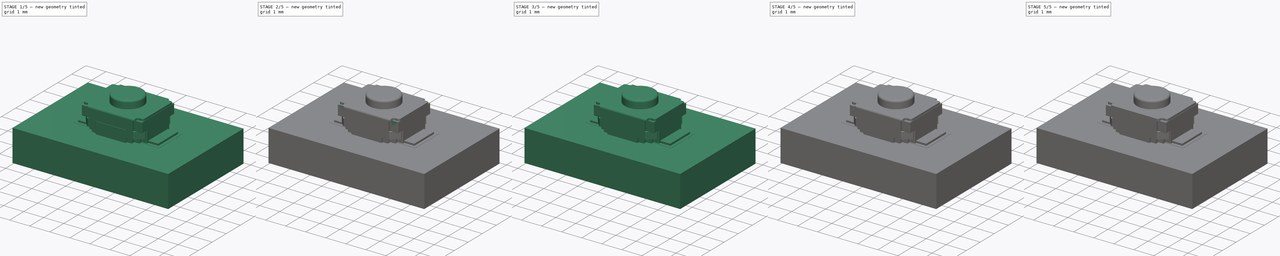
[diagram: build sequence overview — one tinted view per stage of 5, left to right]
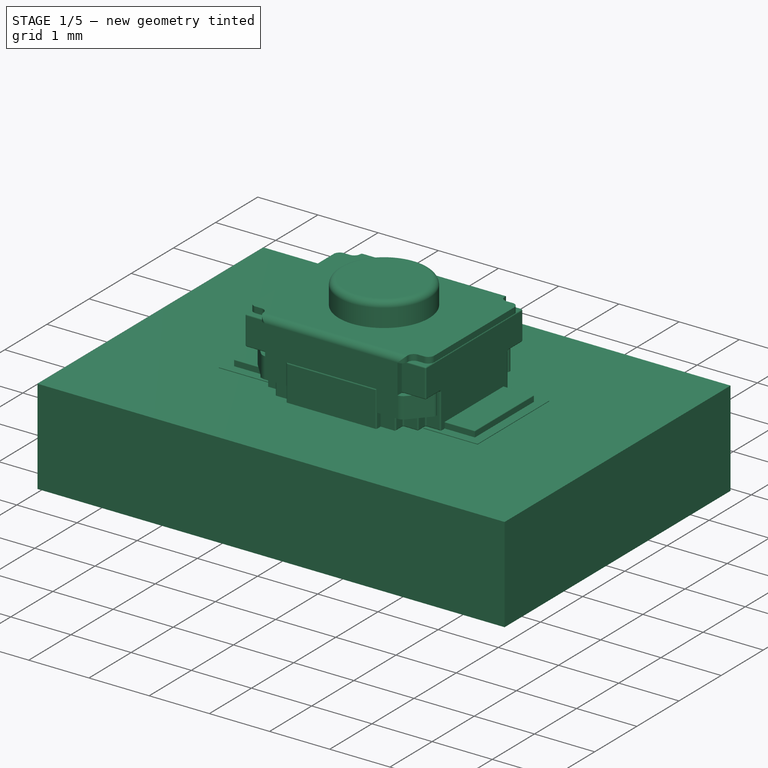
[diagram: stage 1 of 5 — iso view after this stage's code; geometry added in this stage tinted green]
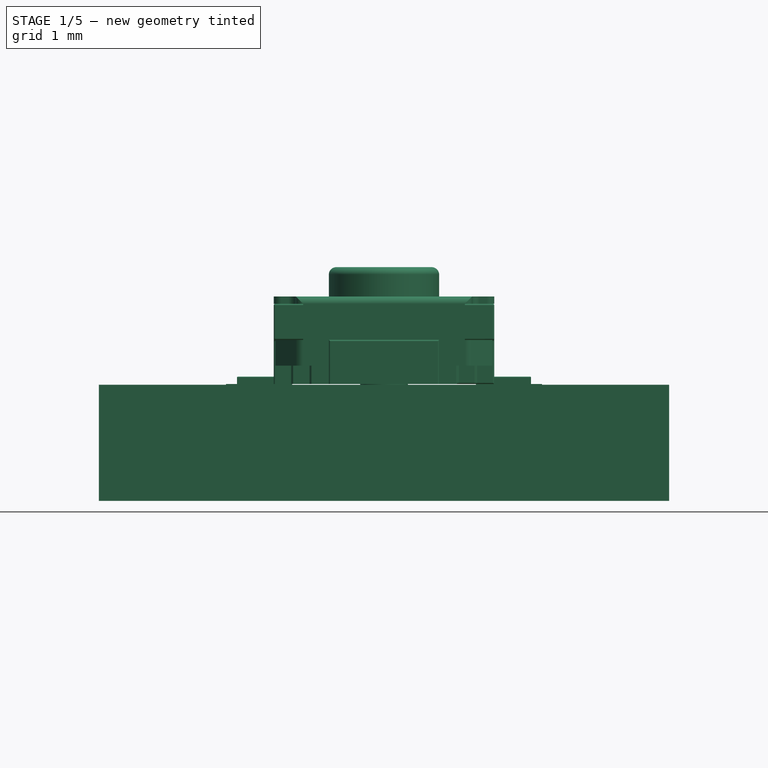
[diagram: stage 1 of 5 — front view after this stage's code; geometry added in this stage tinted green]
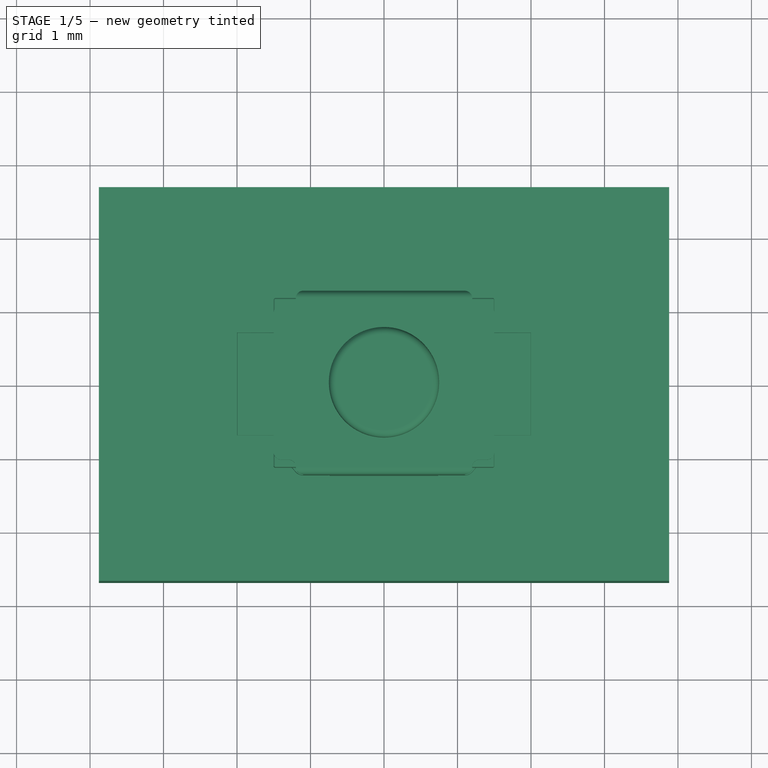
[diagram: stage 1 of 5 — top view after this stage's code; geometry added in this stage tinted green]
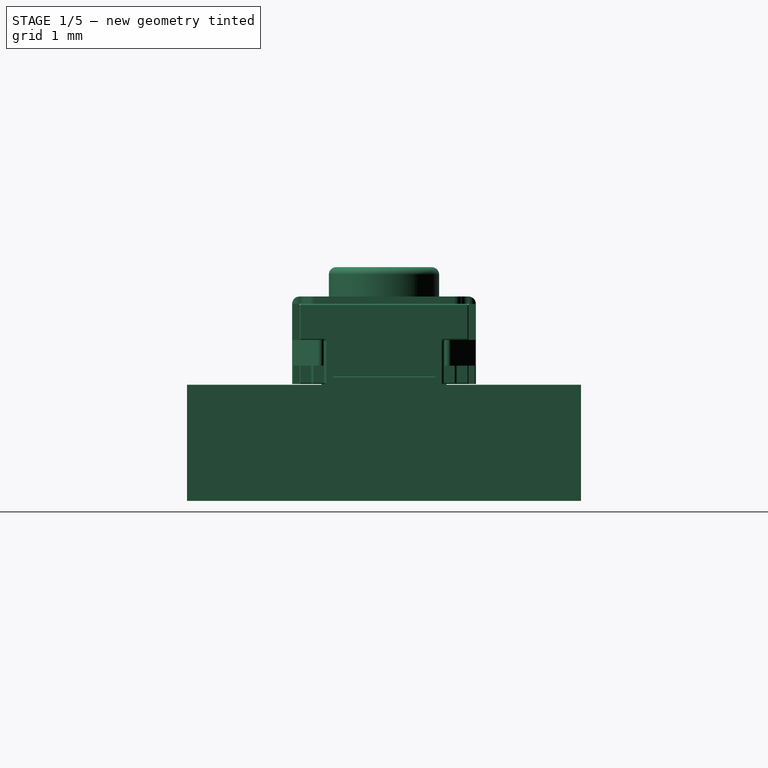
[diagram: stage 1 of 5 — right view after this stage's code; geometry added in this stage tinted green]
FCSTD DOCUMENT  (FreeCAD 0.17R13519 (Git))
Label: SW_SPST_B3U-1000P-B
License: All rights reserved
LicenseURL: http://en.wikipedia.org/wiki/All_rights_reserved
objects: Sketcher::SketchObject×10, Part::FeaturePython×9, PartDesign::Pad×6, Part::MultiFuse×5, App::DocumentObjectGroup×5, Part::Fillet×4, Part::Feature×4, Part::Extrusion×3, PartDesign::Fillet×2, PartDesign::Pocket×1
note: 51 computed .brp shape members not serialized (recipe doc carries the construction recipe); baked Part::Feature solids carry a one-line shape summary decoded from their .brp

FEATURE [App::DocumentObjectGroup] Grupo003  label="relleno"
  Group = -> [Pad001,Pad005,Pad006,Sketch010,Fusion002,Extrude_Sketch010,Sketch,Fillet002002,Pad007,Fusion002003002,Fillet002002005]
FEATURE [App::DocumentObjectGroup] Grupo001  label="make"
  Group = -> [Grupo002,Grupo003,Sketch004,Sketch007,Sketch008,Sketch009,Sketch011,Sketch013]
FEATURE [Part::MultiFuse] Fusion002002
  Shapes = -> [Pocket001,Fillet002001]
FEATURE [Part::Feature] Fillet002002005002  label="Relleno"
  shape: bbox 3 x 2.5 x 2.09 mm, 155 faces (baked)
FEATURE [Part::MultiFuse] Fusion002003003  label="SW_SPST_B3U-1000P-B_SP"
  Shapes = -> [Fusion002002,Fillet002002005002]
FEATURE [Part::FeaturePython] FCrtYd_lines  label="FCrtYd"  # a2plus imported part (geometry in sourceFile) (typed FeaturePython)
  fixedPosition = true
FEATURE [Part::FeaturePython] FFab_lines  label="FFab"  # a2plus imported part (geometry in sourceFile) (typed FeaturePython)
  fixedPosition = true
FEATURE [Part::FeaturePython] Filk_lines  label="FrontSilk"  # a2plus imported part (geometry in sourceFile) (typed FeaturePython)
  fixedPosition = true
FEATURE [Part::FeaturePython] TopPads  # a2plus imported part (geometry in sourceFile) (typed FeaturePython)
  fixedPosition = true
FEATURE [Part::FeaturePython] THPs  label="PTHs"  # a2plus imported part (geometry in sourceFile) (typed FeaturePython)
  fixedPosition = true
FEATURE [Part::FeaturePython] newPCB  label="Pcb"  # a2plus imported part (geometry in sourceFile) (typed FeaturePython)
  fixedPosition = true
FEATURE [App::DocumentObjectGroup] SW_SPST_B3U_1000P_B_fp
  Group = -> [FCrtYd_lines,FFab_lines,Filk_lines,TopPads,THPs,newPCB]
FEATURE [Part::Feature] Shape  label="SW_SPST_B3U-1000P-B"
  shape: bbox 4 x 2.5 x 2.09 mm, 259 faces (baked)
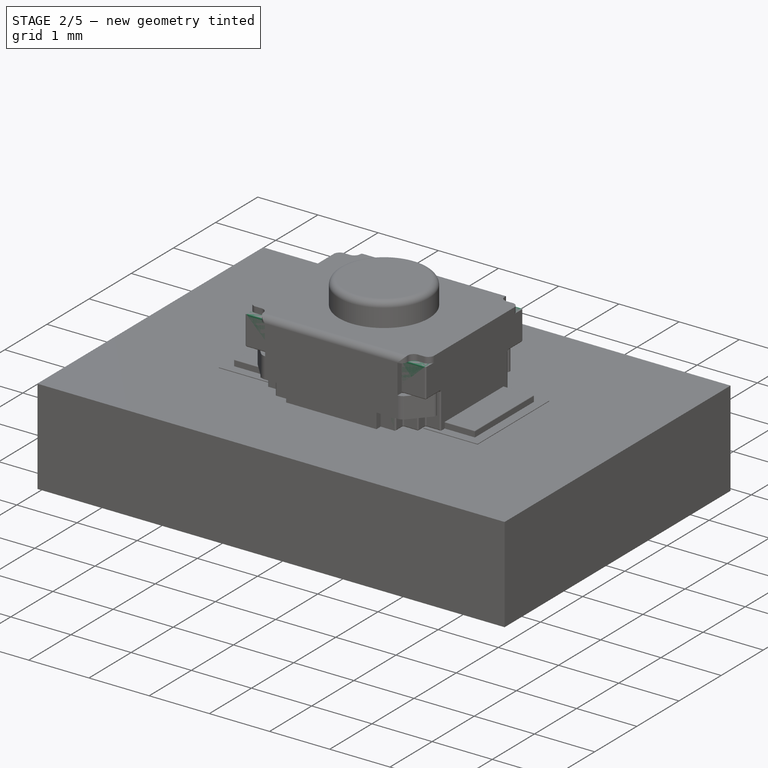
[diagram: stage 2 of 5 — iso view after this stage's code; geometry added in this stage tinted green]
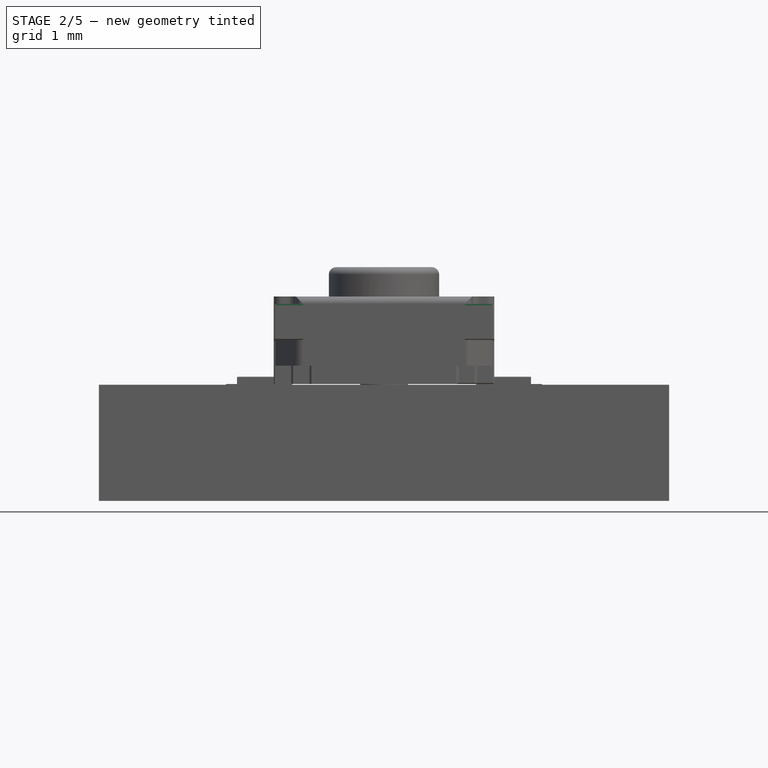
[diagram: stage 2 of 5 — front view after this stage's code; geometry added in this stage tinted green]
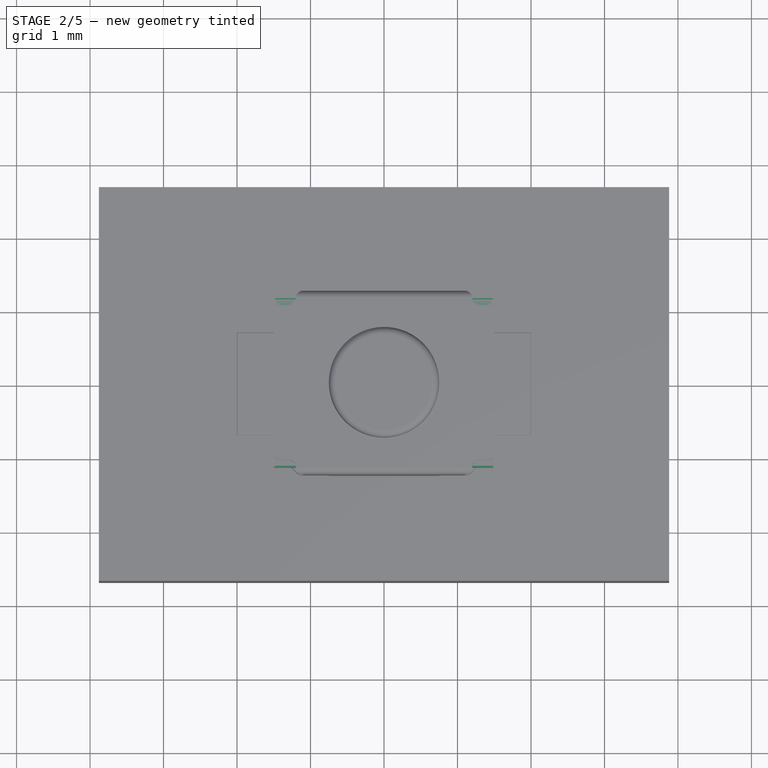
[diagram: stage 2 of 5 — top view after this stage's code; geometry added in this stage tinted green]
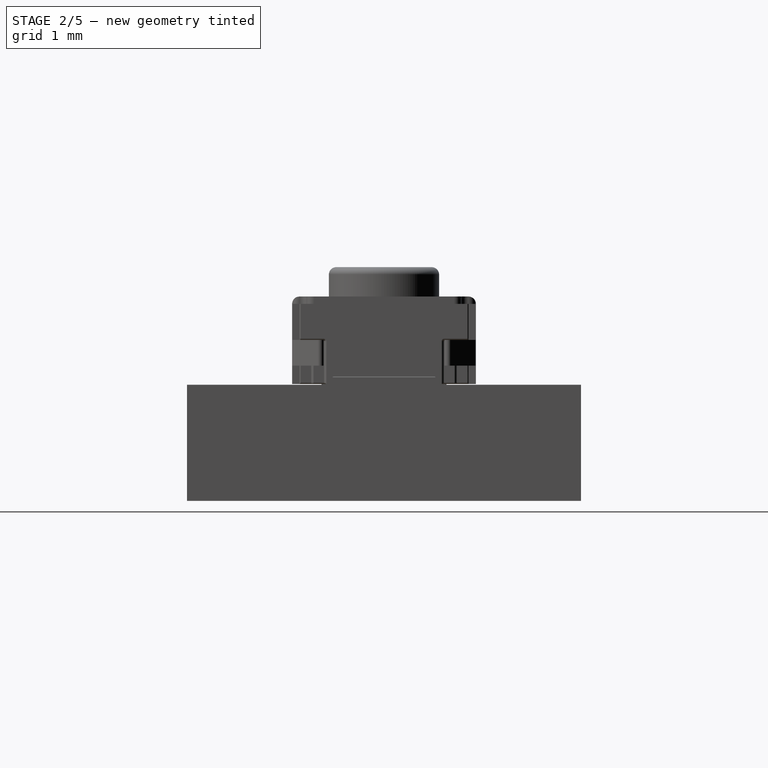
[diagram: stage 2 of 5 — right view after this stage's code; geometry added in this stage tinted green]
FEATURE [Sketcher::SketchObject] Sketch007  label="6.11.Sketch007"
  MapMode = 5
  Placement = pos=(0,0,0) rot=(1,0,0;1.5708rad)
  sketch-geometry (20):
    g0: LineSegment StartX=2 StartY=0 StartZ=0 EndX=1.39 EndY=0 EndZ=0
    g1: LineSegment StartX=1.39 StartY=0 StartZ=0 EndX=1.39 EndY=0.2 EndZ=0
    g2: LineSegment StartX=1.39 StartY=0.2 StartZ=0 EndX=-1.39 EndY=0.2 EndZ=0
    g3: LineSegment StartX=-1.39 StartY=0.2 StartZ=0 EndX=-1.39 EndY=0 EndZ=0
    g4: LineSegment StartX=-1.39 StartY=0 StartZ=0 EndX=-2 EndY=0 EndZ=0
    g5: LineSegment StartX=-2 StartY=0 StartZ=0 EndX=-2 EndY=0.1 EndZ=0
    g6: LineSegment StartX=-2 StartY=0.1 StartZ=0 EndX=-1.49 EndY=0.1 EndZ=0
    g7: LineSegment StartX=-1.49 StartY=0.1 StartZ=0 EndX=-1.49 EndY=0.3 EndZ=0
    g8: LineSegment StartX=-1.49 StartY=0.3 StartZ=0 EndX=1.49 EndY=0.3 EndZ=0
    g9: LineSegment StartX=1.49 StartY=0.3 StartZ=0 EndX=1.49 EndY=0.1 EndZ=0
    g10: LineSegment StartX=1.49 StartY=0.1 StartZ=0 EndX=2 EndY=0.1 EndZ=0
    g11: LineSegment StartX=2 StartY=0.1 StartZ=0 EndX=2 EndY=0 EndZ=0
    g12: LineSegment [constr] StartX=-1.39 StartY=0.2 StartZ=0 EndX=-1.49 EndY=0.2 EndZ=0
    g13: LineSegment [constr] StartX=-1.49 StartY=0.2 StartZ=0 EndX=-1.49 EndY=0.3 EndZ=0
    g14: LineSegment [constr] StartX=-1.49 StartY=0.3 StartZ=0 EndX=-1.39 EndY=0.3 EndZ=0
    g15: LineSegment [constr] StartX=-1.39 StartY=0.3 StartZ=0 EndX=-1.39 EndY=0.2 EndZ=0
    g16: LineSegment [constr] StartX=1.49 StartY=0.3 StartZ=0 EndX=1.39 EndY=0.3 EndZ=0
    g17: LineSegment [constr] StartX=1.39 StartY=0.3 StartZ=0 EndX=1.39 EndY=0.2 EndZ=0
    g18: LineSegment [constr] StartX=1.39 StartY=0.2 StartZ=0 EndX=1.49 EndY=0.2 EndZ=0
    g19: LineSegment [constr] StartX=1.49 StartY=0.2 StartZ=0 EndX=1.49 EndY=0.3 EndZ=0
  constraints (57):
    c: PointOnObject(g0,g-1)
    c: PointOnObject(g0,g-1)
    c: Coincident(g0,g1)
    c: Vertical(g1)
    c: Coincident(g1,g2)
    c: Horizontal(g2)
    c: Coincident(g2,g3)
    c: PointOnObject(g3,g-1)
    c: Vertical(g3)
    c: Coincident(g3,g4)
    c: PointOnObject(g4,g-1)
    c: Coincident(g4,g5)
    c: Vertical(g5)
    c: Coincident(g5,g6)
    c: Horizontal(g6)
    c: Coincident(g6,g7)
    c: Vertical(g7)
    c: Coincident(g7,g8)
    c: Horizontal(g8)
    c: Coincident(g8,g9)
    c: Vertical(g9)
    c: Coincident(g9,g10)
    c: Horizontal(g10)
    c: Coincident(g10,g11)
    c: Coincident(g11,g0)
    c: Vertical(g11)
    c: Coincident(g12,g13)
    c: Coincident(g13,g14)
    c: Coincident(g14,g15)
    c: Coincident(g15,g12)
    c: Horizontal(g12)
    c: Horizontal(g14)
    c: Vertical(g13)
    c: Vertical(g15)
    c: Coincident(g12,g2)
    c: Coincident(g13,g7)
    c: Coincident(g16,g17)
    c: Coincident(g17,g18)
    c: Coincident(g18,g19)
    c: Coincident(g19,g16)
    c: Horizontal(g16)
    c: Horizontal(g18)
    c: Vertical(g17)
    c: Vertical(g19)
    c: Coincident(g16,g8)
    c: Coincident(g17,g1)
    c: Equal(g11,g18)
    c: Equal(g18,g17)
    c: Equal(g17,g15)
    c: Equal(g15,g12)
    c: Equal(g12,g5)
    c: Symmetric(g3,g0,g-2)
    c: DistanceY(g5,g5) = 0.1
    c: DistanceX(g4,g0) = 4
    c: DistanceY(g1,g1) = 0.2
    c: Symmetric(g4,g0,g-2)
    c: DistanceX(g8,g8) = 2.98
FEATURE [PartDesign::Pad] Pad004  label="6.1.Pad004"
  Length = 1.4
  Length2 = 100
  Midplane = true
  Placement = pos=(0,0,0) rot=(1,0,0;1.5708rad)
  Type = 0
FEATURE [Sketcher::SketchObject] Sketch009  label="4.Sketch009"
  ExternalGeometry = -> [Pad005]
  MapMode = 5
  Placement = pos=(0,0,0.6) rot=(0,0,1;0rad)
  sketch-geometry (4):
    g0: LineSegment StartX=-1.5 StartY=1.15 StartZ=0 EndX=1.5 EndY=1.15 EndZ=0
    g1: LineSegment StartX=1.5 StartY=1.15 StartZ=0 EndX=1.5 EndY=-1.15 EndZ=0
    g2: LineSegment StartX=1.5 StartY=-1.15 StartZ=0 EndX=-1.5 EndY=-1.15 EndZ=0
    g3: LineSegment StartX=-1.5 StartY=-1.15 StartZ=0 EndX=-1.5 EndY=1.15 EndZ=0
  constraints (12):
    c: Coincident(g0,g1)
    c: Coincident(g1,g2)
    c: Coincident(g2,g3)
    c: Coincident(g3,g0)
    c: Horizontal(g0)
    c: Horizontal(g2)
    c: Vertical(g1)
    c: Vertical(g3)
    c: PointOnObject(g-6,g2)
    c: PointOnObject(g-3,g3)
    c: PointOnObject(g-5,g0)
    c: PointOnObject(g-4,g1)
FEATURE [PartDesign::Pad] Pad006  label="4.Pad006"
  Length = 0.49
  Length2 = 100
  Type = 0
FEATURE [Part::Fillet] Fillet  label="5.Fillet"
  Base = -> Pad006
  Edges = 58 edges r=0.02: [Edge1,Edge2,Edge3,Edge4,Edge19,Edge20,Edge21,Edge22,Edge28,Edge29,Edge30,Edge31,Edge37,Edge38,Edge39,Edge40,Edge41,Edge42,Edge43,Edge45,Edge53,Edge54,Edge55,Edge56,Edge57,Edge58,Edge59,Edge60,Edge61,Edge69,Edge70,Edge71,Edge72,Edge73,Edge74,Edge75,Edge76,Edge77,Edge85,Edge86,Edge88,Edge89,Edge90,+15 more]
FEATURE [App::DocumentObjectGroup] Grupo002  label="carcaza"
  Group = -> [Sketch012,Fusion,Pocket]
FEATURE [Part::Fillet] Fillet002
  Base = -> Pad004
  Edges = 6 edges r=0.01: [Edge17,Edge21,Edge22,Edge32,Edge33,Edge34]
FEATURE [Sketcher::SketchObject] Sketch014
  MapMode = 5
  Placement = pos=(0,0,0) rot=(1,0,0;3.14159rad)
  Support = -> [Fillet]
  sketch-geometry (1):
    g0: Circle CenterX=0 CenterY=0 CenterZ=0 NormalX=0 NormalY=0 NormalZ=1 AngleXU=0 Radius=0.325
  constraints (2):
    c: Coincident(g0,g-1)
    c: Radius(g0) = 0.325
FEATURE [PartDesign::Pad] Pad007  label="5.Pad007"
  Length = 0.5
  Length2 = 100
  Profile = -> Sketch014
  Type = 0
FEATURE [PartDesign::Fillet] Fillet002002004  label="5.Fillet002002004"
  Base = -> Pad007 [Edge1]
  Radius = 0.1
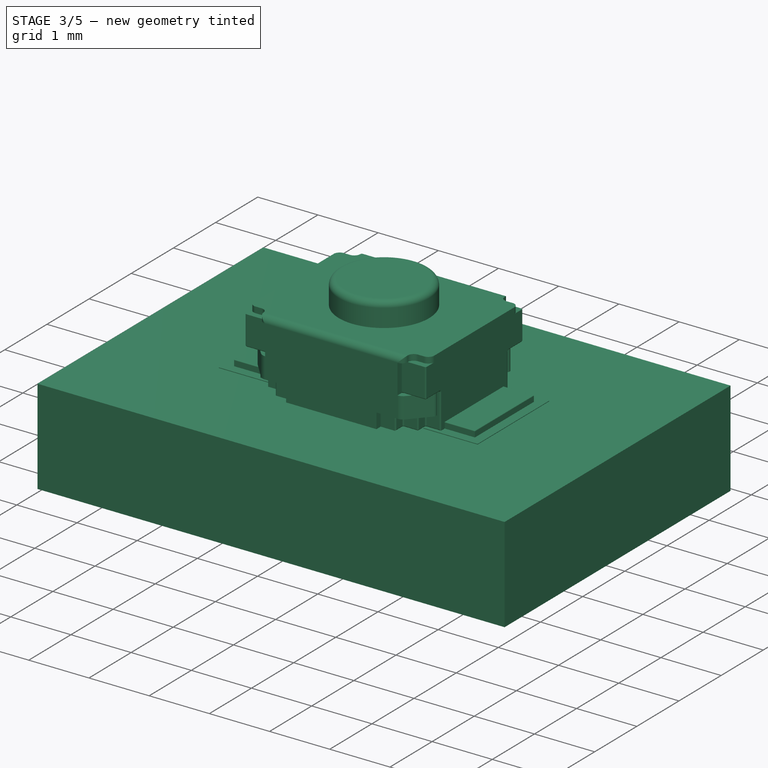
[diagram: stage 3 of 5 — iso view after this stage's code; geometry added in this stage tinted green]
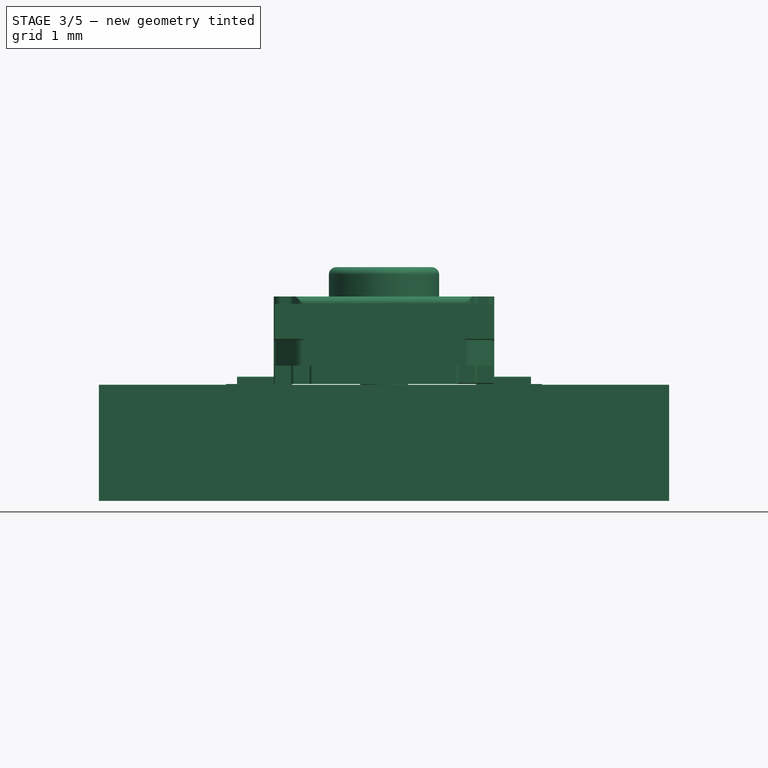
[diagram: stage 3 of 5 — front view after this stage's code; geometry added in this stage tinted green]
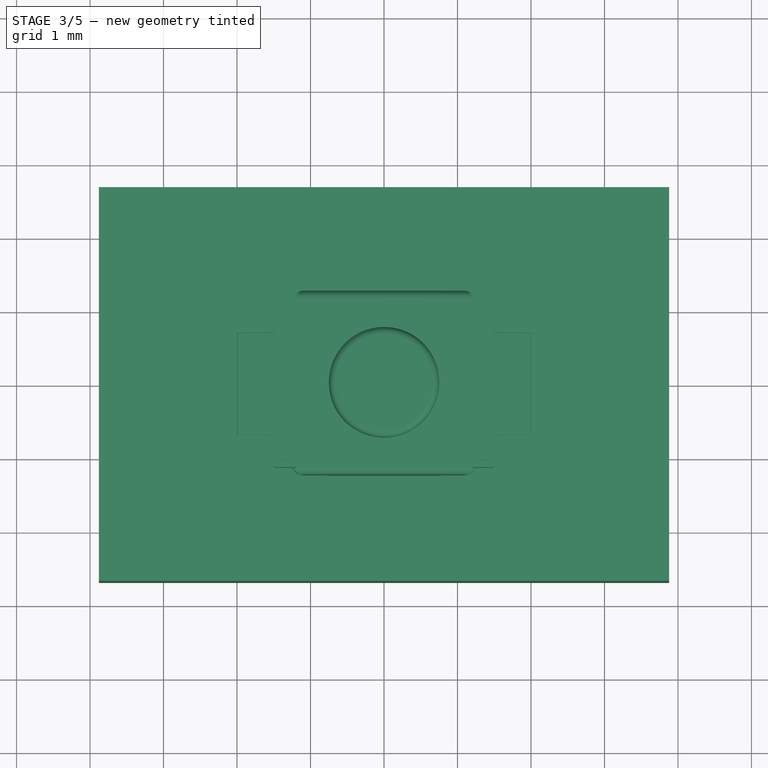
[diagram: stage 3 of 5 — top view after this stage's code; geometry added in this stage tinted green]
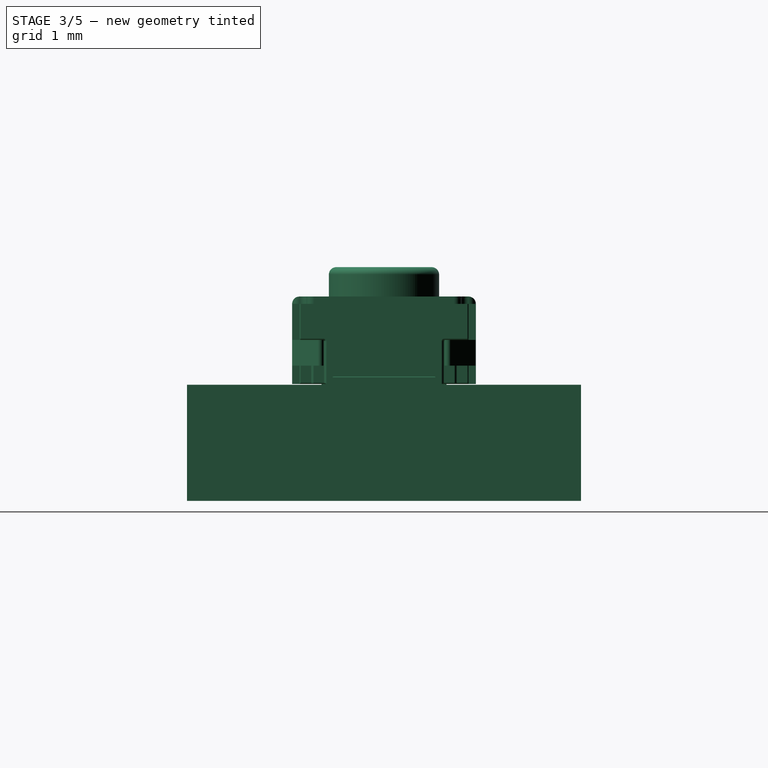
[diagram: stage 3 of 5 — right view after this stage's code; geometry added in this stage tinted green]
FEATURE [Sketcher::SketchObject] Sketch010
  MapMode = 5
  Placement = pos=(0,0,1.09) rot=(0,0,1;0rad)
  sketch-geometry (1):
    g0: Circle CenterX=0 CenterY=0 CenterZ=0 NormalX=0 NormalY=0 NormalZ=1 AngleXU=0 Radius=0.75
  constraints (2):
    c: Coincident(g0,g-1)
    c: Radius(g0) = 0.75
FEATURE [Part::Extrusion] Extrude_Sketch010  label="Sketch010_Extrude"
  Base = -> Sketch010
  Dir = (0,0,0.5)
  DirMode = 0
  FaceMakerClass = Part::FaceMakerExtrusion
  LengthFwd = 0
  LengthRev = 0
  Solid = true
  Symmetric = false
FEATURE [PartDesign::Fillet] Fillet001
  Base = -> Extrude_Sketch010 [Edge3]
  Radius = 0.1
FEATURE [Part::MultiFuse] Fusion002  label="7.Fusion002"
  Shapes = -> [Fillet,Fillet001]
FEATURE [Part::MultiFuse] Fusion002003002  label="7.Fusion002003002"
  Shapes = -> [Fillet001,Fillet002002004,Grupo004]
FEATURE [Part::Fillet] Fillet002002005  label="8.Fillet002002005"
  Base = -> Fusion002003002
  Edges = 16 edges r=0.02: [Edge6,Edge9,Edge10,Edge13,Edge92,Edge94,Edge96,Edge105,Edge107,Edge109,Edge120,Edge123,Edge124,Edge178,Edge180,Edge181]
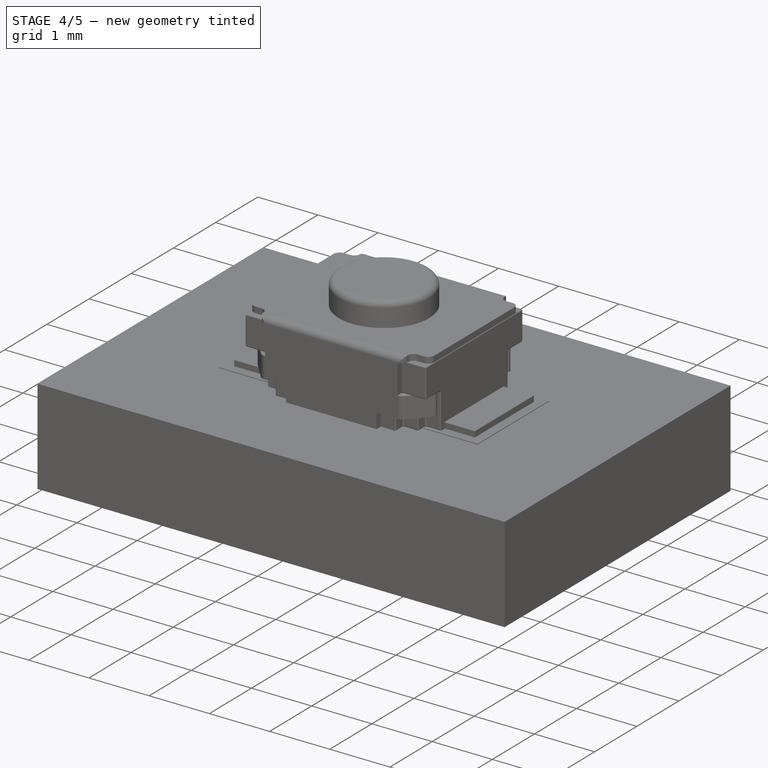
[diagram: stage 4 of 5 — iso view after this stage's code; geometry added in this stage tinted green]
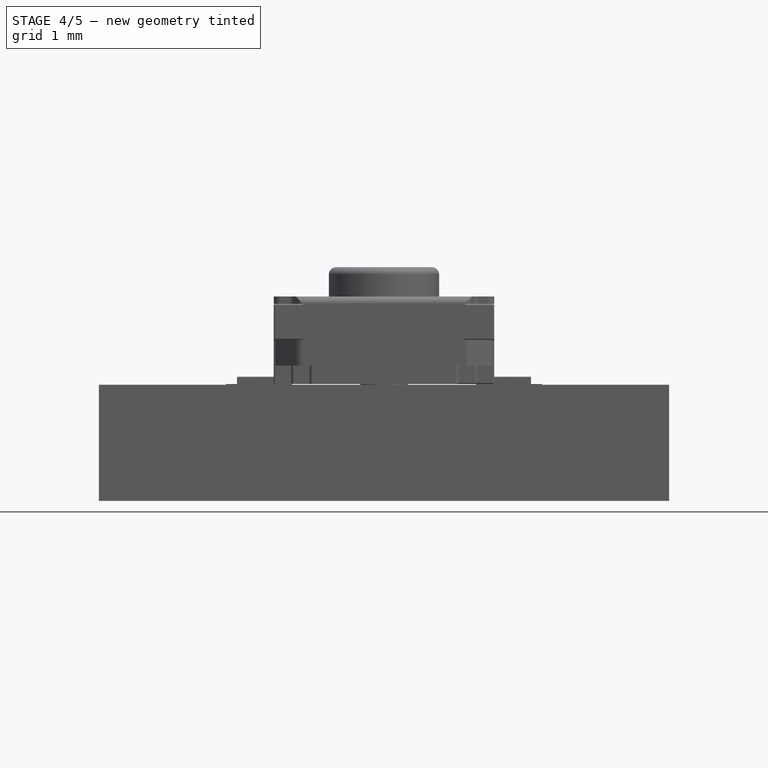
[diagram: stage 4 of 5 — front view after this stage's code; geometry added in this stage tinted green]
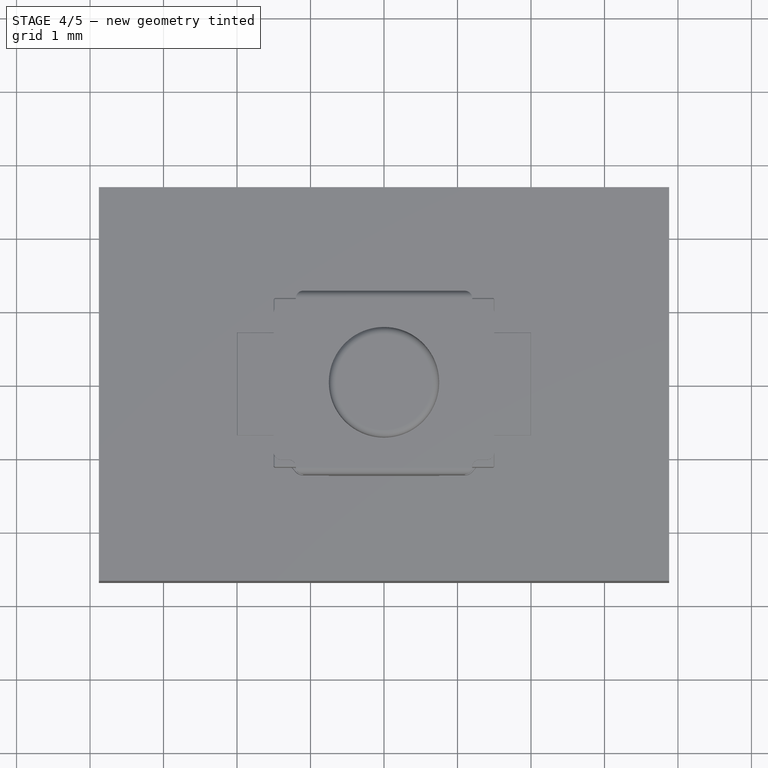
[diagram: stage 4 of 5 — top view after this stage's code; geometry added in this stage tinted green]
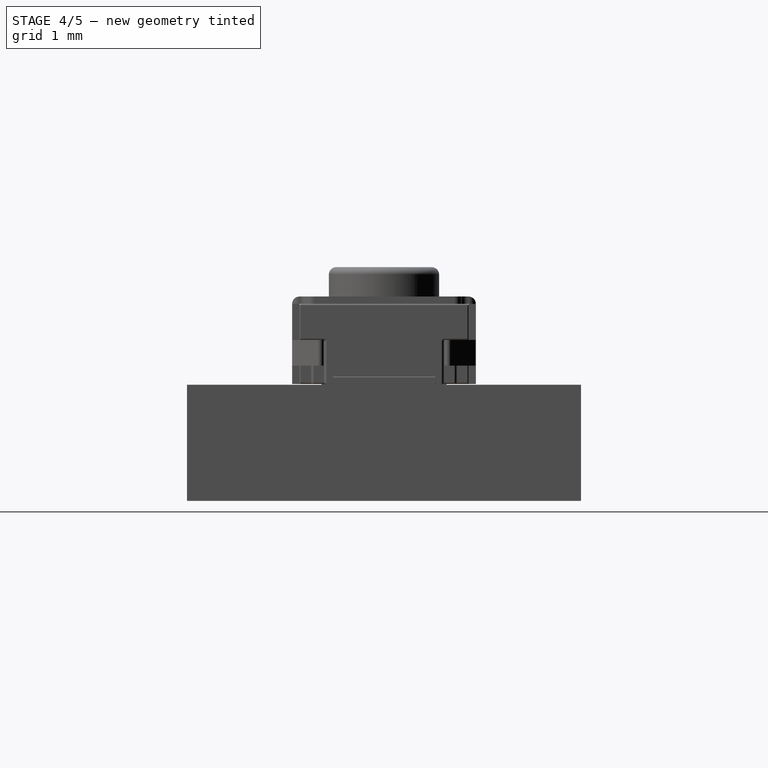
[diagram: stage 4 of 5 — right view after this stage's code; geometry added in this stage tinted green]
FEATURE [PartDesign::Pad] Pad  label="2.Pad"
  Length = 0.49
  Length2 = 100
  Placement = pos=(0,0,1.09) rot=(1,0,0;3.14159rad)
  Type = 0
FEATURE [Sketcher::SketchObject] Sketch012  label="3.Sketch012"
  ExternalGeometry = -> [Pad]
  MapMode = 5
  Placement = pos=(0,0,0.6) rot=(1,0,0;3.14159rad)
  sketch-geometry (11):
    g0: LineSegment StartX=-0.75 StartY=1.25 StartZ=0 EndX=-1.1 EndY=1.25 EndZ=0
    g1: ArcOfCircle CenterX=-1.1 CenterY=1.115 CenterZ=0 NormalX=0 NormalY=0 NormalZ=1 AngleXU=0 Radius=0.135 StartAngle=1.5708 EndAngle=2.41728
    g2: LineSegment StartX=-1.20111 StartY=1.20445 StartZ=0 EndX=-1.46616 EndY=0.904871 EndZ=0
    g3: ArcOfCircle CenterX=-1.42871 CenterY=0.87174 CenterZ=0 NormalX=0 NormalY=0 NormalZ=1 AngleXU=0 Radius=0.05 StartAngle=2.41728 EndAngle=5.55887
    g4: LineSegment StartX=-1.39126 StartY=0.838609 StartZ=0 EndX=-1.12621 EndY=1.13819 EndZ=0
    g5: LineSegment [constr] StartX=-1.46616 StartY=0.904871 StartZ=0 EndX=-1.39126 EndY=0.838609 EndZ=0
    g6: LineSegment [constr] StartX=-1.12621 StartY=1.13819 StartZ=0 EndX=-1.20111 EndY=1.20445 EndZ=0
    g7: ArcOfCircle CenterX=-1.1 CenterY=1.115 CenterZ=0 NormalX=0 NormalY=0 NormalZ=1 AngleXU=0 Radius=0.035 StartAngle=1.5708 EndAngle=2.41728
    g8: LineSegment StartX=-1.1 StartY=1.15 StartZ=0 EndX=-0.75 EndY=1.15 EndZ=0
    g9: LineSegment StartX=-0.75 StartY=1.15 StartZ=0 EndX=-0.75 EndY=1.25 EndZ=0
    g10: LineSegment [constr] StartX=-1.1 StartY=1.15 StartZ=0 EndX=-1.1 EndY=1.25 EndZ=0
  constraints (33):
    c: PointOnObject(g0,g-3)
    c: Horizontal(g0)
    c: DistanceX(g-3,g0) = 0.35
    c: Coincident(g1,g0)
    c: Coincident(g2,g1)
    c: Coincident(g3,g2)
    c: Coincident(g4,g3)
    c: Coincident(g5,g2)
    c: Coincident(g5,g3)
    c: Coincident(g6,g4)
    c: Coincident(g6,g1)
    c: PointOnObject(g3,g5)
    c: Coincident(g7,g4)
    c: Coincident(g8,g7)
    c: Horizontal(g8)
    c: Coincident(g9,g8)
    c: Coincident(g9,g0)
    c: Vertical(g9)
    c: DistanceY(g9,g9) = 0.1
    c: Tangent(g7,g4)
    c: Equal(g9,g6)
    c: Equal(g6,g5)
    c: Distance(g2) = 0.4
    c: Coincident(g10,g7)
    c: Coincident(g10,g-3)
    c: Vertical(g10)
    c: Perpendicular(g6,g4)
    c: Tangent(g8,g7)
    c: Perpendicular(g2,g5)
    c: Tangent(g2,g1)
    c: Tangent(g0,g1)
    c: Angle(g4,g8) = 2.29511
    c: Radius(g7) = 0.035
FEATURE [Part::Extrusion] Extrude_Sketch012  label="3.1.Sketch012_Extrude"
  Base = -> Sketch012
  Dir = (0,0,-0.35)
  DirMode = 0
  FaceMakerClass = Part::FaceMakerExtrusion
  LengthFwd = 0
  LengthRev = 0
  Solid = true
  Symmetric = false
FEATURE [Part::FeaturePython] Clone001  label="3.2.Clone of 3.Sketch012_Extrude001"  # Draft clone (typed FeaturePython)
  Objects = -> [Extrude_Sketch012]
  Placement = pos=(0,0,0.85) rot=(0,1,0;3.14159rad)
  Scale = (1,1,1)
FEATURE [Part::FeaturePython] Clone002  label="3.3Clone of Clone of 3.Sketch012_Extrude001"  # Draft clone (typed FeaturePython)
  Objects = -> [Clone001]
  Placement = pos=(0,0,0.85) rot=(1,0,0;3.14159rad)
  Scale = (1,1,1)
FEATURE [Sketcher::SketchObject] Sketch013  label="5.Sketch013"
  ExternalGeometry = -> [Fusion]
  MapMode = 5
  Placement = pos=(1.1,0,0) rot=(0.57735,0.57735,0.57735;2.0944rad)
  sketch-geometry (8):
    g0: ArcOfCircle CenterX=1.15 CenterY=1.09 CenterZ=0 NormalX=0 NormalY=0 NormalZ=1 AngleXU=0 Radius=0.1 StartAngle=8.47373e-06 EndAngle=1.5708
    g1: LineSegment [constr] StartX=1.25 StartY=1.09 StartZ=0 EndX=1.25 EndY=1.09 EndZ=0
    g2: LineSegment StartX=1.15 StartY=1.19 StartZ=0 EndX=1.25 EndY=1.19 EndZ=0
    g3: LineSegment StartX=1.25 StartY=1.09 StartZ=0 EndX=1.25 EndY=1.19 EndZ=0
    g4: ArcOfCircle CenterX=-1.15 CenterY=1.09 CenterZ=0 NormalX=0 NormalY=0 NormalZ=1 AngleXU=0 Radius=0.1 StartAngle=1.5708 EndAngle=3.14159
    g5: LineSegment StartX=-1.25 StartY=1.09 StartZ=0 EndX=-1.25 EndY=1.19 EndZ=0
    g6: LineSegment StartX=-1.25 StartY=1.19 StartZ=0 EndX=-1.15 EndY=1.19 EndZ=0
    g7: LineSegment [constr] StartX=-1.15 StartY=1.19 StartZ=0 EndX=1.15 EndY=1.19 EndZ=0
  constraints (24):
    c: Coincident(g1,g0)
    c: Coincident(g1,g-3)
    c: Vertical(g1)
    c: Tangent(g0,g1)
    c: Coincident(g2,g0)
    c: Horizontal(g2)
    c: Tangent(g2,g0)
    c: Coincident(g3,g0)
    c: Coincident(g3,g2)
    c: Vertical(g3)
    c: DistanceY(g1,g2) = 0.1
    c: Radius(g0) = 0.1
    c: Vertical(g5)
    c: Tangent(g5,g4)
    c: Coincident(g6,g5)
    c: Coincident(g6,g4)
    c: Horizontal(g6)
    c: Tangent(g6,g4)
    c: Coincident(g5,g4)
    c: Equal(g4,g0)
    c: Coincident(g7,g4)
    c: Coincident(g7,g0)
    c: Horizontal(g7)
    c: DistanceX(g5,g2) = 2.5
FEATURE [PartDesign::Pocket] Pocket  label="5.Pocket"
  Length = 5
  Length2 = 100
  Midplane = true
  Reversed = true
  Type = 0
FEATURE [App::DocumentObjectGroup] Grupo004  label="Pines000"
  Group = -> [Pad004,Fillet002]
FEATURE [Part::Feature] Pocket001  label="Carcaza"
  shape: bbox 3 x 2.5 x 0.94 mm, 69 faces (baked)
FEATURE [Part::Feature] Fillet002001  label="Pines"
  shape: bbox 4 x 1.4 x 0.3002 mm, 20 faces (baked)
FEATURE [Part::Fillet] Fillet002002  label="8.Fillet002002"
  Base = -> Fusion002
  Edges = 10 edges r=0.02: [Edge16,Edge18,Edge20,Edge31,Edge33,Edge35,Edge48,Edge82,Edge120,Edge143]
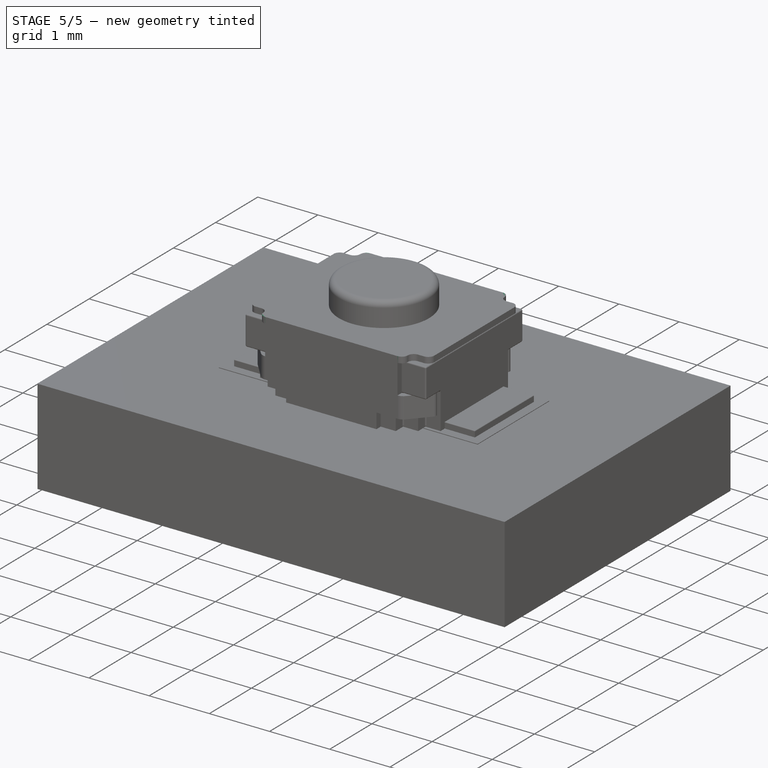
[diagram: stage 5 of 5 — iso view after this stage's code; geometry added in this stage tinted green]
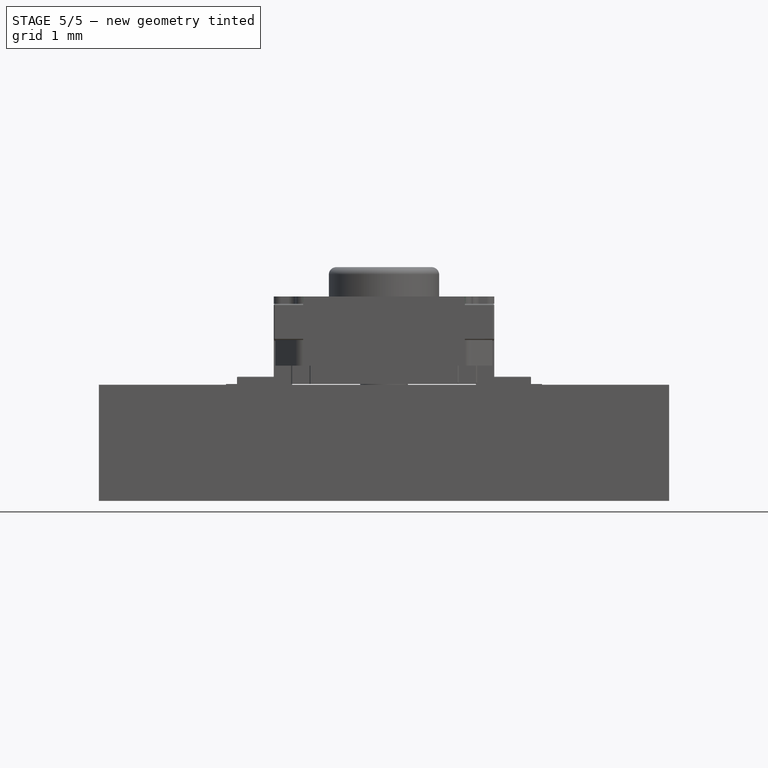
[diagram: stage 5 of 5 — front view after this stage's code; geometry added in this stage tinted green]
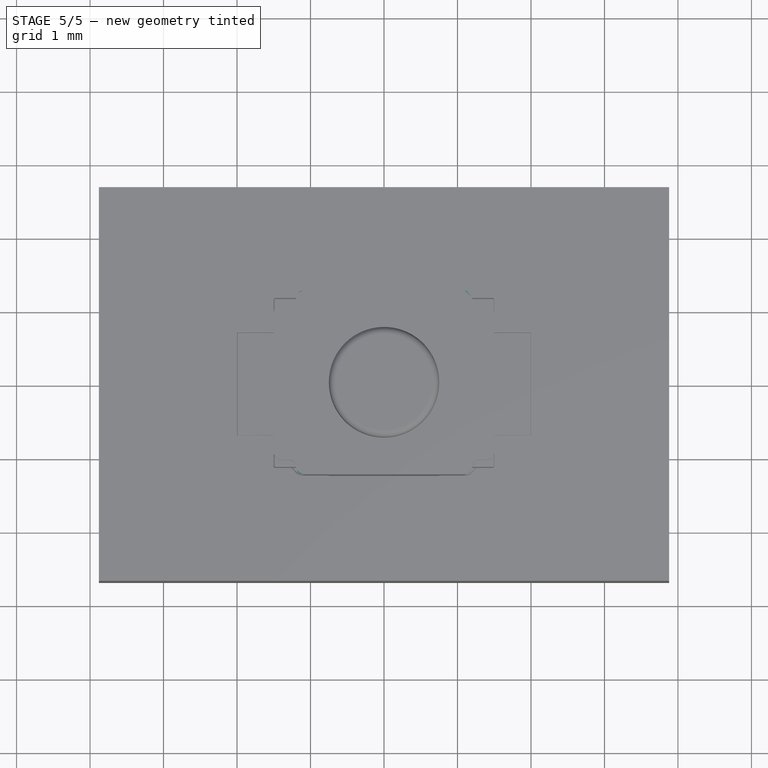
[diagram: stage 5 of 5 — top view after this stage's code; geometry added in this stage tinted green]
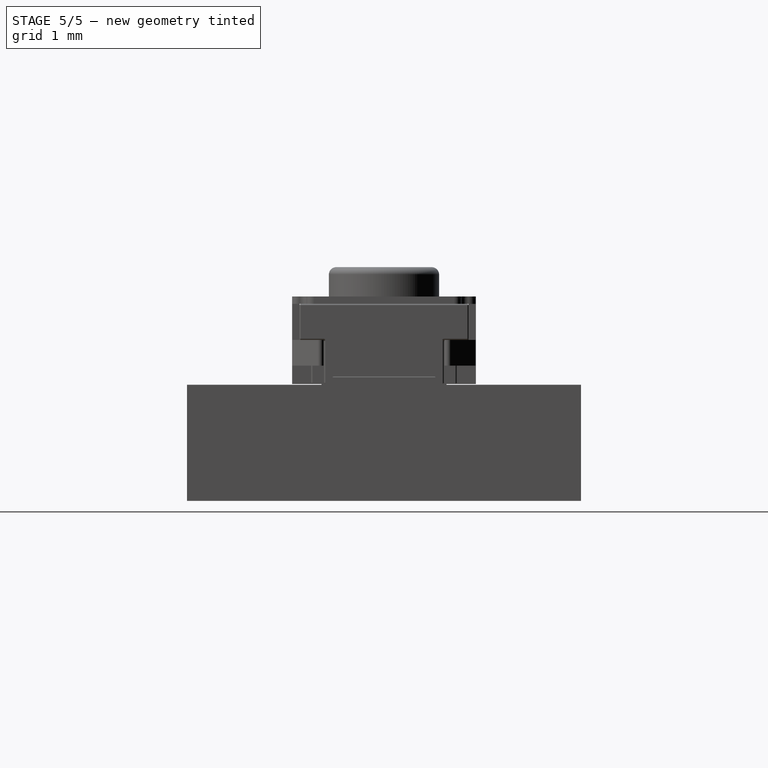
[diagram: stage 5 of 5 — right view after this stage's code; geometry added in this stage tinted green]
FEATURE [Sketcher::SketchObject] Sketch004  label="1.Sketch004"
  MapMode = 5
  sketch-geometry (40):
    g0: LineSegment [constr] StartX=-1.5 StartY=1.25 StartZ=0 EndX=1.5 EndY=1.25 EndZ=0
    g1: LineSegment [constr] StartX=1.5 StartY=1.25 StartZ=0 EndX=1.5 EndY=-1.25 EndZ=0
    g2: LineSegment [constr] StartX=1.5 StartY=-1.25 StartZ=0 EndX=-1.5 EndY=-1.25 EndZ=0
    g3: LineSegment [constr] StartX=-1.5 StartY=-1.25 StartZ=0 EndX=-1.5 EndY=1.25 EndZ=0
    g4: LineSegment StartX=0.75 StartY=-1.15 StartZ=0 EndX=0.75 EndY=-1.25 EndZ=0
    g5: LineSegment StartX=0.75 StartY=-1.25 StartZ=0 EndX=-0.75 EndY=-1.25 EndZ=0
    g6: LineSegment StartX=-0.75 StartY=-1.25 StartZ=0 EndX=-0.75 EndY=-1.15 EndZ=0
    g7: LineSegment StartX=-0.75 StartY=1.15 StartZ=0 EndX=-0.75 EndY=1.25 EndZ=0
    g8: LineSegment StartX=-0.75 StartY=1.25 StartZ=0 EndX=0.75 EndY=1.25 EndZ=0
    g9: LineSegment StartX=0.75 StartY=1.25 StartZ=0 EndX=0.75 EndY=1.15 EndZ=0
    g10: LineSegment StartX=-1.5 StartY=0.7 StartZ=0 EndX=-1.4 EndY=0.7 EndZ=0
    g11: LineSegment StartX=-1.4 StartY=0.7 StartZ=0 EndX=-1.4 EndY=-0.7 EndZ=0
    g12: LineSegment StartX=-1.4 StartY=-0.7 StartZ=0 EndX=-1.5 EndY=-0.7 EndZ=0
    g13: LineSegment StartX=1.5 StartY=0.7 StartZ=0 EndX=1.4 EndY=0.7 EndZ=0
    g14: LineSegment StartX=1.4 StartY=0.7 StartZ=0 EndX=1.4 EndY=-0.7 EndZ=0
    g15: LineSegment StartX=1.4 StartY=-0.7 StartZ=0 EndX=1.5 EndY=-0.7 EndZ=0
    g16: LineSegment StartX=-1.5 StartY=0.8 StartZ=0 EndX=-1.5 EndY=0.7 EndZ=0
    g17: LineSegment StartX=-1 StartY=1.15 StartZ=0 EndX=-0.75 EndY=1.15 EndZ=0
    g18: LineSegment StartX=-1.5 StartY=-0.8 StartZ=0 EndX=-1.5 EndY=-0.7 EndZ=0
    g19: LineSegment StartX=1.5 StartY=-0.8 StartZ=0 EndX=1.5 EndY=-0.7 EndZ=0
    g20: LineSegment StartX=1.5 StartY=0.8 StartZ=0 EndX=1.5 EndY=0.7 EndZ=0
    g21: LineSegment StartX=-1.5 StartY=0.8 StartZ=0 EndX=-1.25 EndY=0.8 EndZ=0
    g22: LineSegment StartX=-1.25 StartY=0.8 StartZ=0 EndX=-1.25 EndY=0.975 EndZ=0
    g23: LineSegment StartX=-1.25 StartY=0.975 StartZ=0 EndX=-1 EndY=0.975 EndZ=0
    g24: LineSegment StartX=-1 StartY=0.975 StartZ=0 EndX=-1 EndY=1.15 EndZ=0
    g25: LineSegment StartX=1.5 StartY=0.8 StartZ=0 EndX=1.25 EndY=0.8 EndZ=0
    g26: LineSegment StartX=1.25 StartY=0.8 StartZ=0 EndX=1.25 EndY=0.975 EndZ=0
    g27: LineSegment StartX=1.25 StartY=0.975 StartZ=0 EndX=1 EndY=0.975 EndZ=0
    g28: LineSegment StartX=1 StartY=0.975 StartZ=0 EndX=1 EndY=1.15 EndZ=0
    g29: LineSegment StartX=1 StartY=1.15 StartZ=0 EndX=0.75 EndY=1.15 EndZ=0
    g30: LineSegment StartX=1.5 StartY=-0.8 StartZ=0 EndX=1.25 EndY=-0.8 EndZ=0
    g31: LineSegment StartX=1.25 StartY=-0.8 StartZ=0 EndX=1.25 EndY=-0.975 EndZ=0
    g32: LineSegment StartX=1.25 StartY=-0.975 StartZ=0 EndX=1 EndY=-0.975 EndZ=0
    g33: LineSegment StartX=1 StartY=-0.975 StartZ=0 EndX=1 EndY=-1.15 EndZ=0
    g34: LineSegment StartX=1 StartY=-1.15 StartZ=0 EndX=0.75 EndY=-1.15 EndZ=0
    g35: LineSegment StartX=-0.75 StartY=-1.15 StartZ=0 EndX=-1 EndY=-1.15 EndZ=0
    g36: LineSegment StartX=-1 StartY=-1.15 StartZ=0 EndX=-1 EndY=-0.975 EndZ=0
    g37: LineSegment StartX=-1 StartY=-0.975 StartZ=0 EndX=-1.25 EndY=-0.975 EndZ=0
    g38: LineSegment StartX=-1.25 StartY=-0.975 StartZ=0 EndX=-1.25 EndY=-0.8 EndZ=0
    g39: LineSegment StartX=-1.25 StartY=-0.8 StartZ=0 EndX=-1.5 EndY=-0.8 EndZ=0
  constraints (119):
    c: Coincident(g0,g1)
    c: Coincident(g1,g2)
    c: Coincident(g2,g3)
    c: Coincident(g3,g0)
    c: Horizontal(g0)
    c: Horizontal(g2)
    c: Vertical(g1)
    c: Symmetric(g0,g1,g-1)
    c: DistanceY(g3,g3) = 2.5
    c: DistanceX(g0,g0) = 3
    c: PointOnObject(g4,g2)
    c: Vertical(g4)
    c: Coincident(g4,g5)
    c: PointOnObject(g5,g2)
    c: Coincident(g5,g6)
    c: Vertical(g6)
    c: PointOnObject(g7,g0)
    c: Vertical(g7)
    c: Coincident(g7,g8)
    c: PointOnObject(g8,g0)
    c: Coincident(g8,g9)
    c: Equal(g6,g4)
    c: Equal(g4,g9)
    c: Equal(g9,g7)
    c: Vertical(g9)
    c: DistanceY(g7,g7) = 0.1
    c: PointOnObject(g10,g3)
    c: Horizontal(g10)
    c: Coincident(g10,g11)
    c: Coincident(g11,g12)
    c: PointOnObject(g12,g3)
    c: Horizontal(g12)
    c: PointOnObject(g13,g1)
    c: Horizontal(g13)
    c: Coincident(g13,g14)
    c: Vertical(g14)
    c: Coincident(g14,g15)
    c: PointOnObject(g15,g1)
    c: Horizontal(g15)
    c: Equal(g11,g14)
    c: Symmetric(g11,g10,g-1)
    c: Equal(g12,g10)
    c: Equal(g10,g15)
    c: Equal(g15,g13)
    c: DistanceY(g11,g11) = 1.4
    c: Symmetric(g14,g13,g-1)
    c: Equal(g10,g7)
    c: PointOnObject(g16,g3)
    c: Coincident(g16,g10)
    c: DistanceX(g8,g8) = 1.5
    c: Coincident(g17,g7)
    c: Horizontal(g17)
    c: PointOnObject(g18,g3)
    c: Coincident(g18,g12)
    c: Equal(g16,g18)
    c: PointOnObject(g19,g1)
    c: Coincident(g19,g15)
    c: Equal(g18,g19)
    c: PointOnObject(g20,g1)
    c: Coincident(g20,g13)
    c: Equal(g18,g20)
    c: DistanceX(g9,g20) = 0.75
    c: Coincident(g16,g21)
    c: Horizontal(g21)
    c: Coincident(g21,g22)
    c: Vertical(g22)
    c: Coincident(g22,g23)
    c: Horizontal(g23)
    c: Coincident(g23,g24)
    c: Vertical(g24)
    c: Coincident(g24,g17)
    c: Equal(g21,g23)
    c: Equal(g23,g17)
    c: Equal(g22,g24)
    c: Equal(g7,g16)
    c: Coincident(g20,g25)
    c: Horizontal(g25)
    c: Coincident(g25,g26)
    c: Vertical(g26)
    c: Coincident(g26,g27)
    c: Horizontal(g27)
    c: Coincident(g27,g28)
    c: Vertical(g28)
    c: Coincident(g28,g29)
    c: Coincident(g29,g9)
    c: Horizontal(g29)
    c: Equal(g26,g28)
    c: Equal(g29,g27)
    c: Equal(g27,g25)
    c: Coincident(g19,g30)
    c: Horizontal(g30)
    c: Coincident(g30,g31)
    c: Vertical(g31)
    c: Coincident(g31,g32)
    c: Coincident(g32,g33)
    c: Vertical(g33)
    c: Coincident(g33,g34)
    c: Coincident(g34,g4)
    c: Horizontal(g34)
    c: Horizontal(g32)
    c: Equal(g33,g31)
    c: Equal(g30,g32)
    c: Equal(g32,g34)
    c: DistanceX(g4,g1) = 0.75
    c: Coincident(g6,g35)
    c: Horizontal(g35)
    c: Coincident(g35,g36)
    c: Vertical(g36)
    c: Coincident(g36,g37)
    c: Horizontal(g37)
    c: Coincident(g37,g38)
    c: Vertical(g38)
    c: Coincident(g38,g39)
    c: Coincident(g39,g18)
    c: Horizontal(g39)
    c: Equal(g38,g36)
    c: Equal(g39,g37)
    c: Equal(g37,g35)
    c: DistanceX(g2,g5) = 0.75
FEATURE [PartDesign::Pad] Pad001  label="2.Pad001"
  Length = 0.1
  Length2 = 100
  Type = 0
FEATURE [Sketcher::SketchObject] Sketch008  label="3.Sketch008"
  ExternalGeometry = -> [Pad001]
  MapMode = 5
  Placement = pos=(0,0,0.1) rot=(0,0,1;0rad)
  sketch-geometry (28):
    g0: LineSegment StartX=-1.5 StartY=0.8 StartZ=0 EndX=-1.5 EndY=-0.8 EndZ=0
    g1: LineSegment StartX=-1.5 StartY=-0.8 StartZ=0 EndX=-1.25 EndY=-0.8 EndZ=0
    g2: LineSegment StartX=-1.25 StartY=-0.8 StartZ=0 EndX=-1.25 EndY=-0.975 EndZ=0
    g3: LineSegment StartX=-1.25 StartY=-0.975 StartZ=0 EndX=-1 EndY=-0.975 EndZ=0
    g4: LineSegment StartX=-1 StartY=-0.975 StartZ=0 EndX=-1 EndY=-1.15 EndZ=0
    g5: LineSegment StartX=-1 StartY=-1.15 StartZ=0 EndX=-0.75 EndY=-1.15 EndZ=0
    g6: LineSegment StartX=-0.75 StartY=-1.15 StartZ=0 EndX=-0.75 EndY=-1.25 EndZ=0
    g7: LineSegment StartX=-0.75 StartY=-1.25 StartZ=0 EndX=0.75 EndY=-1.25 EndZ=0
    g8: LineSegment StartX=0.75 StartY=-1.25 StartZ=0 EndX=0.75 EndY=-1.15 EndZ=0
    g9: LineSegment StartX=0.75 StartY=-1.15 StartZ=0 EndX=1 EndY=-1.15 EndZ=0
    g10: LineSegment StartX=1 StartY=-1.15 StartZ=0 EndX=1 EndY=-0.975 EndZ=0
    g11: LineSegment StartX=1 StartY=-0.975 StartZ=0 EndX=1.25 EndY=-0.975 EndZ=0
    g12: LineSegment StartX=1.25 StartY=-0.975 StartZ=0 EndX=1.25 EndY=-0.8 EndZ=0
    g13: LineSegment StartX=1.25 StartY=-0.8 StartZ=0 EndX=1.5 EndY=-0.8 EndZ=0
    g14: LineSegment StartX=1.5 StartY=-0.8 StartZ=0 EndX=1.5 EndY=0.8 EndZ=0
    g15: LineSegment StartX=1.5 StartY=0.8 StartZ=0 EndX=1.25 EndY=0.8 EndZ=0
    g16: LineSegment StartX=1.25 StartY=0.8 StartZ=0 EndX=1.25 EndY=0.975 EndZ=0
    g17: LineSegment StartX=1.25 StartY=0.975 StartZ=0 EndX=1 EndY=0.975 EndZ=0
    g18: LineSegment StartX=1 StartY=0.975 StartZ=0 EndX=1 EndY=1.15 EndZ=0
    g19: LineSegment StartX=1 StartY=1.15 StartZ=0 EndX=0.75 EndY=1.15 EndZ=0
    g20: LineSegment StartX=0.75 StartY=1.15 StartZ=0 EndX=0.75 EndY=1.25 EndZ=0
    g21: LineSegment StartX=0.75 StartY=1.25 StartZ=0 EndX=-0.75 EndY=1.25 EndZ=0
    g22: LineSegment StartX=-0.75 StartY=1.25 StartZ=0 EndX=-0.75 EndY=1.15 EndZ=0
    g23: LineSegment StartX=-0.75 StartY=1.15 StartZ=0 EndX=-1 EndY=1.15 EndZ=0
    g24: LineSegment StartX=-1 StartY=1.15 StartZ=0 EndX=-1 EndY=0.975 EndZ=0
    g25: LineSegment StartX=-1 StartY=0.975 StartZ=0 EndX=-1.25 EndY=0.975 EndZ=0
    g26: LineSegment StartX=-1.25 StartY=0.975 StartZ=0 EndX=-1.25 EndY=0.8 EndZ=0
    g27: LineSegment StartX=-1.25 StartY=0.8 StartZ=0 EndX=-1.5 EndY=0.8 EndZ=0
  constraints (56):
    c: Coincident(g-4,g0)
    c: Coincident(g0,g-3)
    c: Coincident(g0,g1)
    c: Coincident(g1,g-9)
    c: Coincident(g1,g2)
    c: Coincident(g2,g-9)
    c: Coincident(g2,g3)
    c: Coincident(g3,g-10)
    c: Coincident(g3,g4)
    c: Coincident(g4,g-10)
    c: Coincident(g4,g5)
    c: Coincident(g5,g-7)
    c: Coincident(g5,g6)
    c: Coincident(g6,g-8)
    c: Coincident(g6,g7)
    c: Coincident(g7,g-8)
    c: Coincident(g7,g8)
    c: Coincident(g8,g-20)
    c: Coincident(g8,g9)
    c: Coincident(g9,g-20)
    c: Coincident(g9,g10)
    c: Coincident(g10,g-19)
    c: Coincident(g10,g11)
    c: Coincident(g11,g-18)
    c: Coincident(g11,g12)
    c: Coincident(g12,g-18)
    c: Coincident(g12,g13)
    c: Coincident(g13,g-16)
    c: Coincident(g13,g14)
    c: Coincident(g14,g-17)
    c: Coincident(g14,g15)
    c: Coincident(g15,g-15)
    c: Coincident(g15,g16)
    c: Coincident(g16,g-14)
    c: Coincident(g16,g17)
    c: Coincident(g17,g-14)
    c: Coincident(g17,g18)
    c: Coincident(g18,g-13)
    c: Coincident(g18,g19)
    c: Coincident(g19,g-13)
    c: Coincident(g19,g20)
    c: Coincident(g20,g-6)
    c: Coincident(g20,g21)
    c: Coincident(g21,g-6)
    c: Coincident(g21,g22)
    c: Coincident(g22,g-5)
    c: Coincident(g22,g23)
    c: Coincident(g23,g-12)
    c: Coincident(g23,g24)
    c: Coincident(g24,g-12)
    c: Coincident(g24,g25)
    c: Coincident(g25,g-11)
    c: Coincident(g25,g26)
    c: Coincident(g26,g-11)
    c: Coincident(g26,g27)
    c: Coincident(g27,g0)
FEATURE [PartDesign::Pad] Pad005  label="3.Pad005"
  Length = 0.5
  Length2 = 100
  Type = 0
FEATURE [Sketcher::SketchObject] Sketch  label="1.Sketch"
  MapMode = 5
  Placement = pos=(0,0,1.09) rot=(0,0,1;0rad)
  sketch-geometry (25):
    g0: LineSegment StartX=-1.1 StartY=1.25 StartZ=0 EndX=1.1 EndY=1.25 EndZ=0
    g1: LineSegment StartX=1.1 StartY=-1.25 StartZ=0 EndX=-1.1 EndY=-1.25 EndZ=0
    g2: LineSegment StartX=-1.5 StartY=-0.95 StartZ=0 EndX=-1.5 EndY=0.95 EndZ=0
    g3: LineSegment StartX=1.5 StartY=-0.95 StartZ=0 EndX=1.5 EndY=0.95 EndZ=0
    g4: LineSegment StartX=-1.40013 StartY=1.04987 StartZ=0 EndX=-1.29974 EndY=1.04987 EndZ=0
    g5: ArcOfCircle CenterX=-1.29974 CenterY=1.14975 CenterZ=0 NormalX=0 NormalY=0 NormalZ=1 AngleXU=0 Radius=0.099873 StartAngle=4.71239 EndAngle=6.28318
    g6: LineSegment StartX=-1.19987 StartY=1.14975 StartZ=0 EndX=-1.19987 EndY=1.15013 EndZ=0
    g7: ArcOfCircle CenterX=-1.1 CenterY=1.15013 CenterZ=0 NormalX=0 NormalY=0 NormalZ=1 AngleXU=0 Radius=0.099873 StartAngle=1.57081 EndAngle=3.1416
    g8: ArcOfCircle CenterX=1.40013 CenterY=0.95 CenterZ=0 NormalX=0 NormalY=0 NormalZ=1 AngleXU=0 Radius=0.099873 StartAngle=6.28319 EndAngle=7.85398
    g9: LineSegment StartX=1.40013 StartY=1.04987 StartZ=0 EndX=1.29974 EndY=1.04987 EndZ=0
    g10: LineSegment StartX=1.19987 StartY=1.14975 StartZ=0 EndX=1.19987 EndY=1.15013 EndZ=0
    g11: ArcOfCircle CenterX=1.1 CenterY=1.15013 CenterZ=0 NormalX=0 NormalY=0 NormalZ=1 AngleXU=0 Radius=0.099873 StartAngle=6.28318 EndAngle=7.85397
    g12: ArcOfCircle CenterX=1.29974 CenterY=1.14975 CenterZ=0 NormalX=0 NormalY=0 NormalZ=1 AngleXU=0 Radius=0.099873 StartAngle=3.14159 EndAngle=4.71239
    g13: ArcOfCircle CenterX=-1.1 CenterY=-1.15013 CenterZ=0 NormalX=0 NormalY=0 NormalZ=1 AngleXU=0 Radius=0.099873 StartAngle=3.1416 EndAngle=4.71239
    g14: ArcOfCircle CenterX=-1.29975 CenterY=-1.14975 CenterZ=0 NormalX=0 NormalY=0 NormalZ=1 AngleXU=0 Radius=0.099873 StartAngle=2.45503e-06 EndAngle=1.5708
    g15: LineSegment StartX=-1.29975 StartY=-1.04987 StartZ=0 EndX=-1.40013 EndY=-1.04987 EndZ=0
    g16: ArcOfCircle CenterX=-1.40013 CenterY=-0.95 CenterZ=0 NormalX=0 NormalY=0 NormalZ=1 AngleXU=0 Radius=0.099873 StartAngle=3.14159 EndAngle=4.71239
    g17: LineSegment StartX=-1.19987 StartY=-1.15013 StartZ=0 EndX=-1.19987 EndY=-1.14975 EndZ=0
    g18: ArcOfCircle CenterX=-1.40013 CenterY=0.95 CenterZ=0 NormalX=0 NormalY=0 NormalZ=1 AngleXU=0 Radius=0.099873 StartAngle=1.5708 EndAngle=3.14159
    g19: ArcOfCircle CenterX=1.40013 CenterY=-0.95 CenterZ=0 NormalX=0 NormalY=0 NormalZ=1 AngleXU=0 Radius=0.099873 StartAngle=4.71239 EndAngle=6.28319
    g20: LineSegment StartX=1.40013 StartY=-1.04987 StartZ=0 EndX=1.29975 EndY=-1.04987 EndZ=0
    g21: ArcOfCircle CenterX=1.29975 CenterY=-1.14975 CenterZ=0 NormalX=0 NormalY=0 NormalZ=1 AngleXU=0 Radius=0.099873 StartAngle=1.5708 EndAngle=3.14161
    g22: LineSegment StartX=1.19987 StartY=-1.14975 StartZ=0 EndX=1.19987 EndY=-1.15013 EndZ=0
    g23: ArcOfCircle CenterX=1.1 CenterY=-1.15013 CenterZ=0 NormalX=0 NormalY=0 NormalZ=1 AngleXU=0 Radius=0.099873 StartAngle=4.71239 EndAngle=6.28318
    g24: Circle CenterX=0 CenterY=0 CenterZ=0 NormalX=0 NormalY=0 NormalZ=1 AngleXU=0 Radius=0.75
  constraints (86):
    c: Horizontal(g0)
    c: Horizontal(g1)
    c: Symmetric(g0,g0,g-2)
    c: Symmetric(g1,g1,g-2)
    c: Equal(g1,g0)
    c: Vertical(g2)
    c: Vertical(g3)
    c: Symmetric(g2,g2,g-1)
    c: Symmetric(g3,g3,g-1)
    c: Equal(g3,g2)
    c: Symmetric(g2,g3,g-2)
    c: Symmetric(g1,g0,g-1)
    c: DistanceY(g1,g0) = 2.5
    c: DistanceX(g2,g3) = 3
    c: DistanceY(g2,g2) = 1.9
    c: Horizontal(g4)
    c: Coincident(g5,g4)
    c: Coincident(g6,g5)
    c: Vertical(g6)
    c: Coincident(g7,g6)
    c: Tangent(g6,g5)
    c: Tangent(g6,g7)
    c: Coincident(g7,g0)
    c: Tangent(g7,g0)
    c: Equal(g5,g7)
    c: Coincident(g8,g3)
    c: Coincident(g9,g8)
    c: Horizontal(g9)
    c: Vertical(g10)
    c: Coincident(g11,g10)
    c: Coincident(g12,g9)
    c: Coincident(g10,g12)
    c: Tangent(g12,g9)
    c: Tangent(g12,g10)
    c: Tangent(g10,g11)
    c: Coincident(g11,g0)
    c: Tangent(g0,g11)
    c: Equal(g8,g12)
    c: Equal(g12,g11)
    c: Equal(g11,g7)
    c: Tangent(g3,g8)
    c: Tangent(g9,g8)
    c: Coincident(g13,g1)
    c: Coincident(g15,g14)
    c: Horizontal(g15)
    c: Tangent(g14,g15)
    c: Coincident(g16,g2)
    c: Coincident(g16,g15)
    c: Equal(g7,g13)
    c: Equal(g13,g14)
    c: Equal(g14,g16)
    c: Tangent(g15,g16)
    c: Tangent(g16,g2)
    c: Coincident(g17,g13)
    c: Vertical(g17)
    c: Coincident(g14,g17)
    c: Tangent(g13,g17)
    c: Tangent(g17,g14)
    c: Tangent(g1,g13)
    c: Coincident(g18,g2)
    c: Coincident(g18,g4)
    c: Equal(g18,g5)
    c: Tangent(g2,g18)
    c: Tangent(g18,g4)
    c: Tangent(g4,g5)
    c: Coincident(g19,g3)
    c: Coincident(g20,g19)
    c: Horizontal(g20)
    c: Coincident(g21,g20)
    c: Coincident(g22,g21)
    c: Vertical(g22)
    c: Coincident(g22,g23)
    c: Tangent(g19,g3)
    c: Tangent(g21,g20)
    c: Tangent(g22,g23)
    c: Tangent(g22,g21)
    c: Coincident(g23,g1)
    c: Tangent(g19,g20)
    c: Tangent(g23,g1)
    c: Equal(g23,g21)
    c: Equal(g21,g19)
    c: Equal(g19,g13)
    c: DistanceX(g0,g0) = 2.2
    c: Radius(g18) = 0.099873
    c: Coincident(g24,g-1)
    c: Radius(g24) = 0.75
FEATURE [Sketcher::SketchObject] Sketch011  label="2.Sketch011"
  MapMode = 5
  Placement = pos=(0,0,1.09) rot=(1,0,0;3.14159rad)
  sketch-geometry (8):
    g0: LineSegment StartX=-1.1 StartY=-1.25 StartZ=0 EndX=1.1 EndY=-1.25 EndZ=0
    g1: LineSegment StartX=1.1 StartY=-1.25 StartZ=0 EndX=1.1 EndY=-1.15 EndZ=0
    g2: LineSegment StartX=1.1 StartY=-1.15 StartZ=0 EndX=-1.1 EndY=-1.15 EndZ=0
    g3: LineSegment StartX=-1.1 StartY=-1.15 StartZ=0 EndX=-1.1 EndY=-1.25 EndZ=0
    g4: LineSegment StartX=-1.1 StartY=1.25 StartZ=0 EndX=1.1 EndY=1.25 EndZ=0
    g5: LineSegment StartX=1.1 StartY=1.25 StartZ=0 EndX=1.1 EndY=1.15 EndZ=0
    g6: LineSegment StartX=1.1 StartY=1.15 StartZ=0 EndX=-1.1 EndY=1.15 EndZ=0
    g7: LineSegment StartX=-1.1 StartY=1.15 StartZ=0 EndX=-1.1 EndY=1.25 EndZ=0
  constraints (18):
    c: Coincident(g0,g1)
    c: Coincident(g1,g2)
    c: Coincident(g2,g3)
    c: Coincident(g3,g0)
    c: Horizontal(g0)
    c: Horizontal(g2)
    c: Vertical(g1)
    c: Vertical(g3)
    c: Coincident(g4,g5)
    c: Coincident(g5,g6)
    c: Coincident(g6,g7)
    c: Coincident(g7,g4)
    c: Horizontal(g4)
    c: Horizontal(g6)
    c: Vertical(g5)
    c: Vertical(g7)
    c: Equal(g7,g3)
    c: DistanceY(g7,g7) = 0.1
FEATURE [Part::Extrusion] Extrude_Sketch  label="1.Sketch_Extrude"
  Base = -> Sketch
  Dir = (0,0,0.1)
  DirMode = 0
  FaceMakerClass = Part::FaceMakerExtrusion
  LengthFwd = 0
  LengthRev = 0
  Solid = true
  Symmetric = false
FEATURE [Part::FeaturePython] Clone  label="3.4Clone of 3.Sketch012_Extrude"  # Draft clone (typed FeaturePython)
  Objects = -> [Extrude_Sketch012]
  Placement = pos=(0,0,0) rot=(0,0,1;3.14159rad)
  Scale = (1,1,1)
FEATURE [Part::MultiFuse] Fusion  label="4.Fusion"
  Shapes = -> [Clone002,Clone001,Extrude_Sketch,Pad,Extrude_Sketch012,Clone]
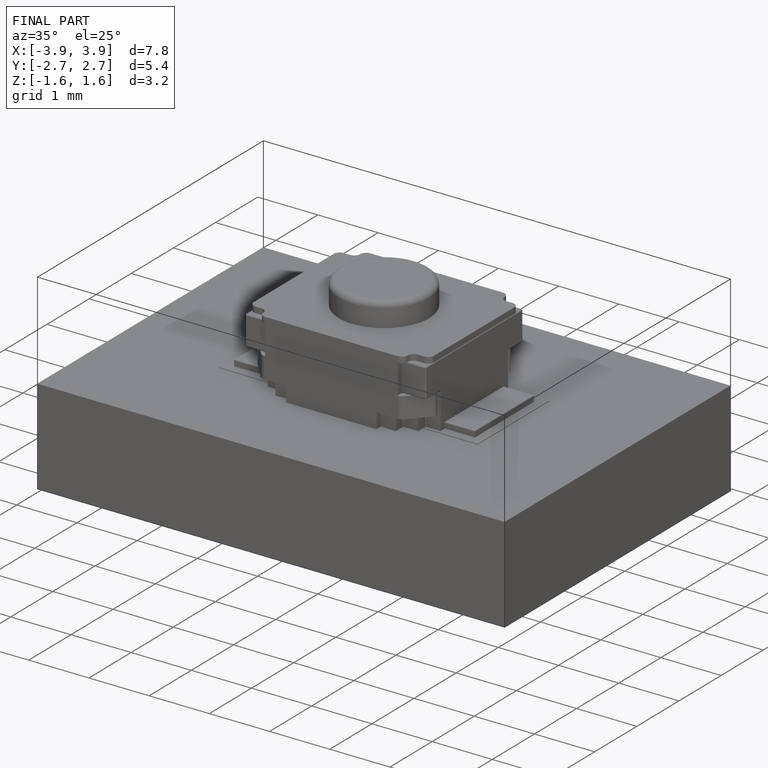
[diagram: finished part — iso view with bounding-box wireframe]
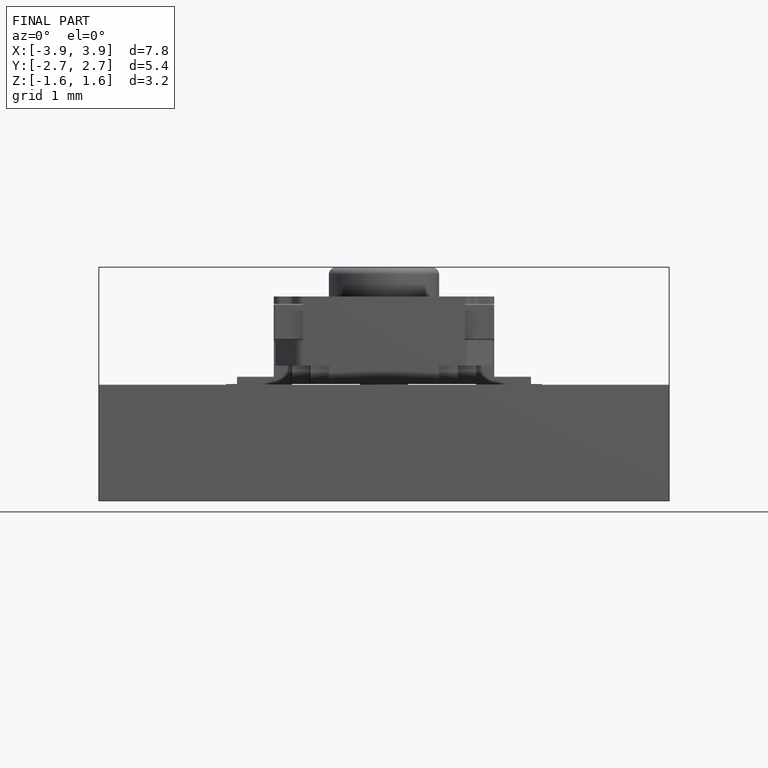
[diagram: finished part — front view with bounding-box wireframe]
